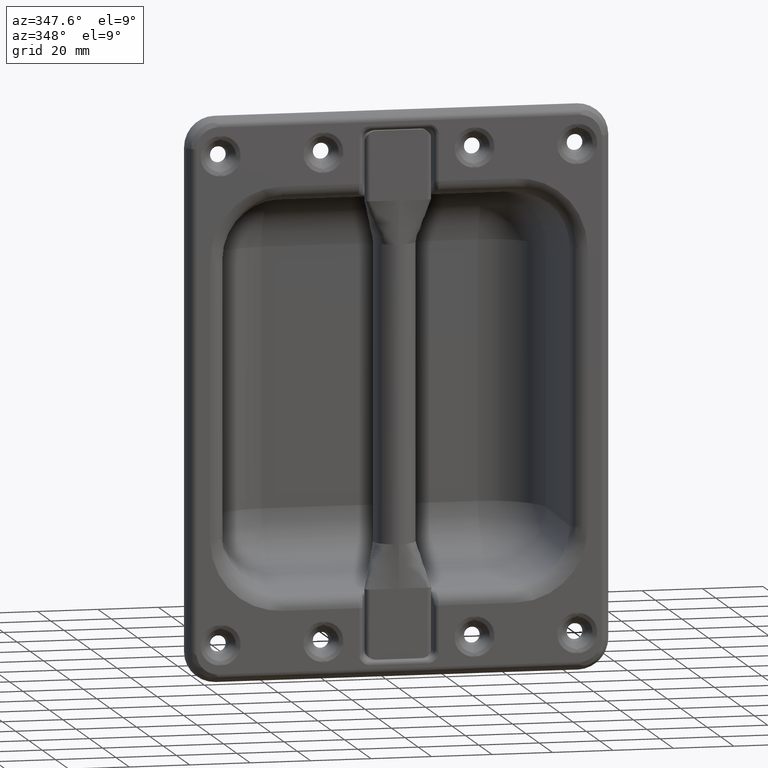
[diagram: clean part render]
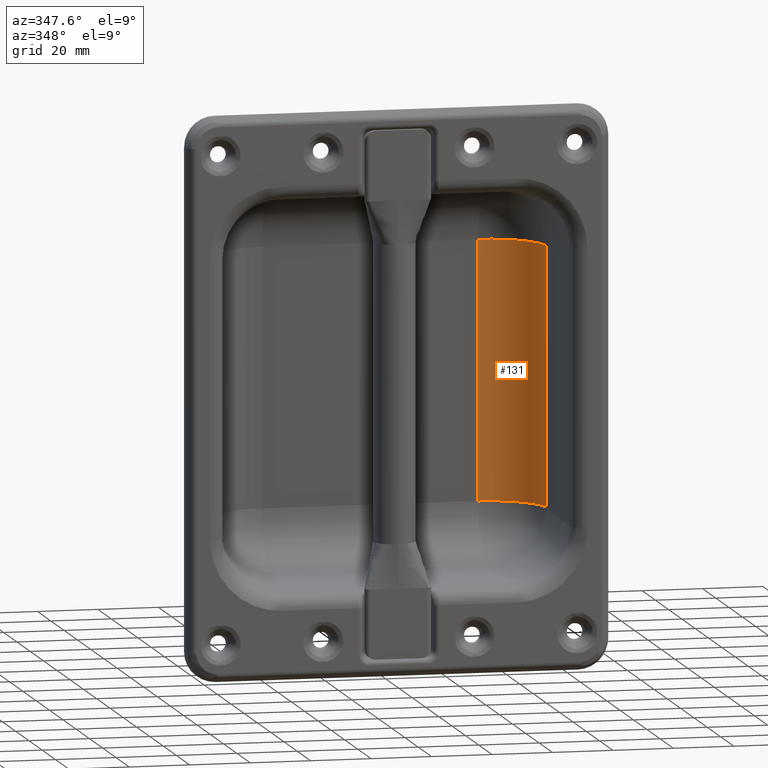
[diagram: same view with one face highlighted and labeled with its STEP entity id]
A machine part, auxiliary view. The second image highlights one B-rep face of the part: STEP entity #131.
In plain terms, the highlighted cylindrical surface (partial cylindrical patch) has radius 19 mm, axis along (-0, -0, -1).
Its self-contained STEP definition (entity closure, byte-faithful):
#131=ADVANCED_FACE('',(#1361),#1360,.F.);
#1360=CYLINDRICAL_SURFACE('',#5297,1.90000000000E+01);
#1361=FACE_OUTER_BOUND('',#5298,.T.);
#5294=CARTESIAN_POINT('',(3.57876992937E+01,2.50000000000E+01,-9.30000000000E+02));
#5295=DIRECTION('',(-0.00000000000E+00,-0.00000000000E+00,-1.00000000000E+00));
#5296=DIRECTION('',(-1.00000000000E+00,-0.00000000000E+00,0.00000000000E+00));
#5297=AXIS2_PLACEMENT_3D('',#5294,#5295,#5296);
#5298=EDGE_LOOP('',(#9686,#9687,#9688,#9689));
#9686=ORIENTED_EDGE('',*,*,#11315,.F.);
#9687=ORIENTED_EDGE('',*,*,#11316,.T.);
#9688=ORIENTED_EDGE('',*,*,#11317,.T.);
#9689=ORIENTED_EDGE('',*,*,#11318,.T.);
#11315=EDGE_CURVE('',#14321,#14322,#14323,.T.);
#11316=EDGE_CURVE('',#14321,#14329,#14330,.T.);
#11317=EDGE_CURVE('',#14329,#14336,#14337,.T.);
#11318=EDGE_CURVE('',#14336,#14322,#14343,.T.);
#14321=VERTEX_POINT('',#19338);
#14322=VERTEX_POINT('',#19339);
#14323=CIRCLE('',#19343,1.90000000000E+01);
#14329=VERTEX_POINT('',#19344);
#14330=LINE('',#19345,#19346);
#14336=VERTEX_POINT('',#19348);
#14337=CIRCLE('',#19352,1.90000000000E+01);
#14343=LINE('',#19353,#19354);
#19338=CARTESIAN_POINT('',(3.57876992937E+01,4.40000000000E+01,4.27876992937E+01));
#19339=CARTESIAN_POINT('',(5.46460761749E+01,2.73155175247E+01,4.27876992937E+01));
#19340=CARTESIAN_POINT('',(3.57876992937E+01,2.50000000000E+01,4.27876992937E+01));
#19341=DIRECTION('',(0.00000000000E+00,-0.00000000000E+00,-1.00000000000E+00));
#19342=DIRECTION('',(-1.00000000000E+00,-0.00000000000E+00,0.00000000000E+00));
#19343=AXIS2_PLACEMENT_3D('',#19340,#19341,#19342);
#19344=CARTESIAN_POINT('',(3.57876992937E+01,4.40000000000E+01,-4.27876992937E+01));
#19345=CARTESIAN_POINT('',(3.57876992937E+01,4.40000000000E+01,4.27876992937E+01));
#19346=VECTOR('',#19347,8.55753985874E+01);
#19347=DIRECTION('',(0.00000000000E+00,0.00000000000E+00,-1.00000000000E+00));
#19348=CARTESIAN_POINT('',(5.46460761749E+01,2.73155175247E+01,-4.27876992937E+01));
#19349=CARTESIAN_POINT('',(3.57876992937E+01,2.50000000000E+01,-4.27876992937E+01));
#19350=DIRECTION('',(0.00000000000E+00,-0.00000000000E+00,-1.00000000000E+00));
#19351=DIRECTION('',(-1.00000000000E+00,-0.00000000000E+00,0.00000000000E+00));
#19352=AXIS2_PLACEMENT_3D('',#19349,#19350,#19351);
#19353=CARTESIAN_POINT('',(5.46460761749E+01,2.73155175247E+01,-4.27876992937E+01));
#19354=VECTOR('',#19355,8.55753985874E+01);
#19355=DIRECTION('',(0.00000000000E+00,0.00000000000E+00,1.00000000000E+00));